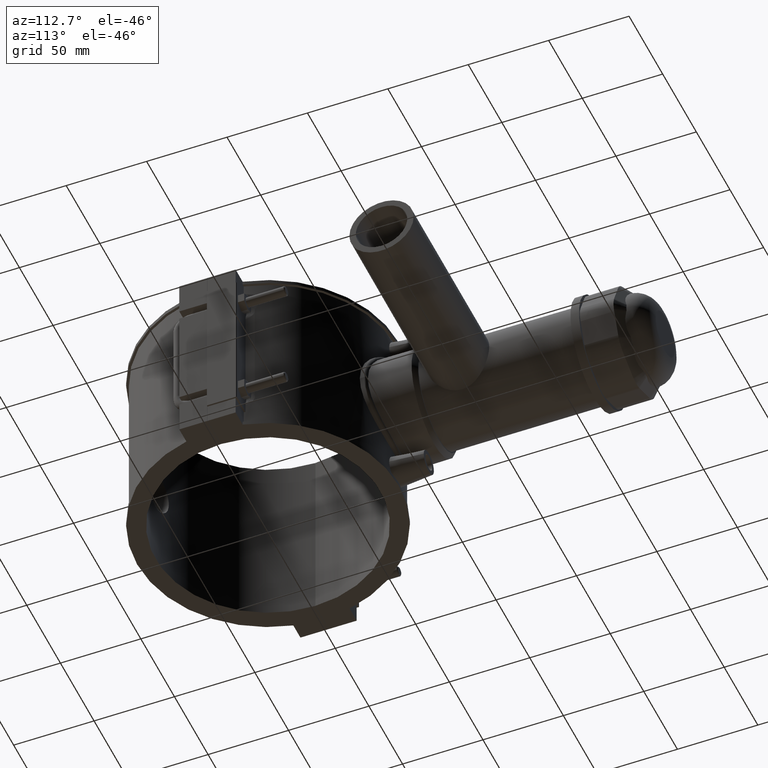
[diagram: clean part render]
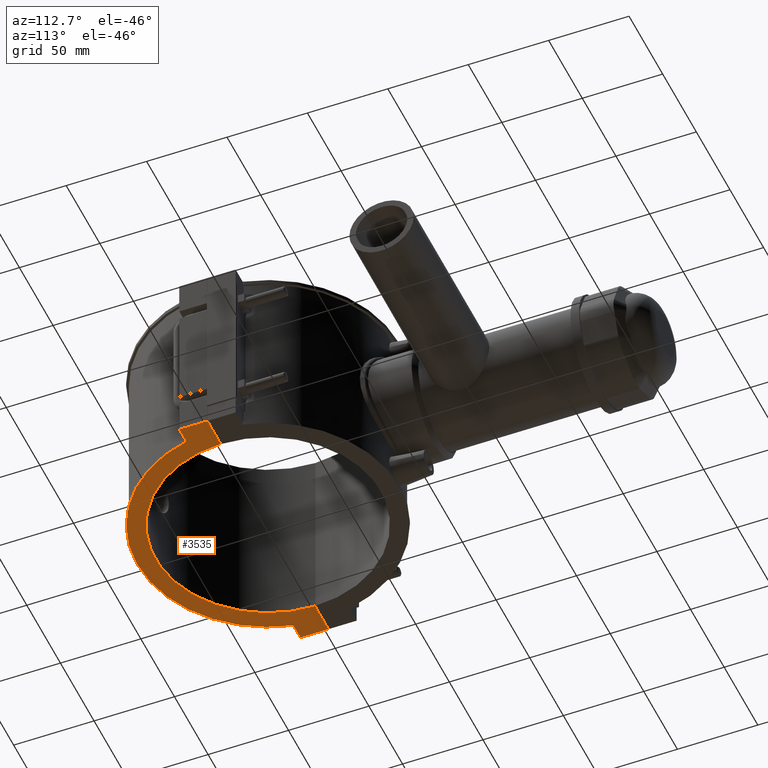
[diagram: same view with one face highlighted and labeled with its STEP entity id]
A machine part, auxiliary view. The second image highlights one B-rep face of the part: STEP entity #3535.
In plain terms, the highlighted planar face has unit normal (0, 0, 1).
Its self-contained STEP definition (entity closure, byte-faithful):
#126=LINE('',#6177,#413);
#145=LINE('',#6348,#432);
#271=LINE('',#7005,#558);
#312=LINE('',#7275,#599);
#317=LINE('',#7284,#604);
#320=LINE('',#7294,#607);
#413=VECTOR('',#4163,10.5074920762969);
#432=VECTOR('',#4216,10.5074920762969);
#558=VECTOR('',#4550,17.45);
#599=VECTOR('',#4687,20.0000178571451);
#604=VECTOR('',#4696,17.45);
#607=VECTOR('',#4709,20.0000178571452);
#1019=FACE_OUTER_BOUND('',#1280,.T.);
#1280=EDGE_LOOP('',(#3143,#3144,#3145,#3146,#3147,#3148,#3149,#3150));
#1339=CIRCLE('',#3653,81.396);
#1404=CIRCLE('',#3834,70.);
#1513=VERTEX_POINT('',#6106);
#1514=VERTEX_POINT('',#6107);
#1534=VERTEX_POINT('',#6175);
#1563=VERTEX_POINT('',#6347);
#1686=VERTEX_POINT('',#7003);
#1724=VERTEX_POINT('',#7272);
#1725=VERTEX_POINT('',#7274);
#1728=VERTEX_POINT('',#7288);
#1896=EDGE_CURVE('',#1513,#1514,#1339,.T.);
#1920=EDGE_CURVE('',#1513,#1534,#126,.T.);
#1955=EDGE_CURVE('',#1563,#1514,#145,.T.);
#2136=EDGE_CURVE('',#1534,#1686,#271,.T.);
#2202=EDGE_CURVE('',#1725,#1724,#312,.T.);
#2207=EDGE_CURVE('',#1724,#1563,#317,.T.);
#2209=EDGE_CURVE('',#1728,#1725,#1404,.T.);
#2212=EDGE_CURVE('',#1686,#1728,#320,.T.);
#3143=ORIENTED_EDGE('',*,*,#2202,.T.);
#3144=ORIENTED_EDGE('',*,*,#2207,.T.);
#3145=ORIENTED_EDGE('',*,*,#1955,.T.);
#3146=ORIENTED_EDGE('',*,*,#1896,.F.);
#3147=ORIENTED_EDGE('',*,*,#1920,.T.);
#3148=ORIENTED_EDGE('',*,*,#2136,.T.);
#3149=ORIENTED_EDGE('',*,*,#2212,.T.);
#3150=ORIENTED_EDGE('',*,*,#2209,.T.);
#3329=PLANE('',#3836);
#3535=ADVANCED_FACE('',(#1019),#3329,.F.);
#3653=AXIS2_PLACEMENT_3D('',#6108,#4130,#4131);
#3834=AXIS2_PLACEMENT_3D('',#7289,#4702,#4703);
#3836=AXIS2_PLACEMENT_3D('',#7293,#4707,#4708);
#4130=DIRECTION('center_axis',(0.,0.,1.));
#4131=DIRECTION('ref_axis',(-0.976614427290077,-0.21499828001376,0.));
#4163=DIRECTION('',(-1.,0.,0.));
#4216=DIRECTION('',(-1.,0.,0.));
#4550=DIRECTION('',(0.,1.,0.));
#4687=DIRECTION('',(1.,1.92747052886312E-19,0.));
#4696=DIRECTION('',(0.,-1.,0.));
#4702=DIRECTION('center_axis',(0.,0.,1.));
#4703=DIRECTION('ref_axis',(-1.,0.,0.));
#4707=DIRECTION('center_axis',(0.,0.,1.));
#4708=DIRECTION('ref_axis',(1.,0.,0.));
#4709=DIRECTION('',(1.,1.92747052886312E-19,0.));
#6106=CARTESIAN_POINT('',(-79.4925079237031,-17.5,-59.));
#6107=CARTESIAN_POINT('',(79.4925079237031,-17.5,-59.));
#6108=CARTESIAN_POINT('Origin',(0.,0.,-59.));
#6175=CARTESIAN_POINT('',(-90.,-17.5,-59.));
#6177=CARTESIAN_POINT('',(-90.,-17.5,-59.));
#6347=CARTESIAN_POINT('',(90.,-17.5,-59.));
#6348=CARTESIAN_POINT('',(77.8574980332659,-17.5,-59.));
#7003=CARTESIAN_POINT('',(-90.,-0.0500000000000078,-59.));
#7005=CARTESIAN_POINT('',(-90.,17.5,-59.));
#7272=CARTESIAN_POINT('',(90.,-0.0500000000000078,-59.));
#7274=CARTESIAN_POINT('',(69.9999821428549,-0.0500000000000078,-59.));
#7275=CARTESIAN_POINT('',(-87.4661928866538,-0.0500000000000078,-59.));
#7284=CARTESIAN_POINT('',(90.,-17.5,-59.));
#7288=CARTESIAN_POINT('',(-69.9999821428549,-0.0500000000000078,-59.));
#7289=CARTESIAN_POINT('Origin',(0.,0.,-59.));
#7293=CARTESIAN_POINT('Origin',(-84.9323857733075,3.14881777612425E-16,
-59.));
#7294=CARTESIAN_POINT('',(-87.4661928866538,-0.0500000000000078,-59.));